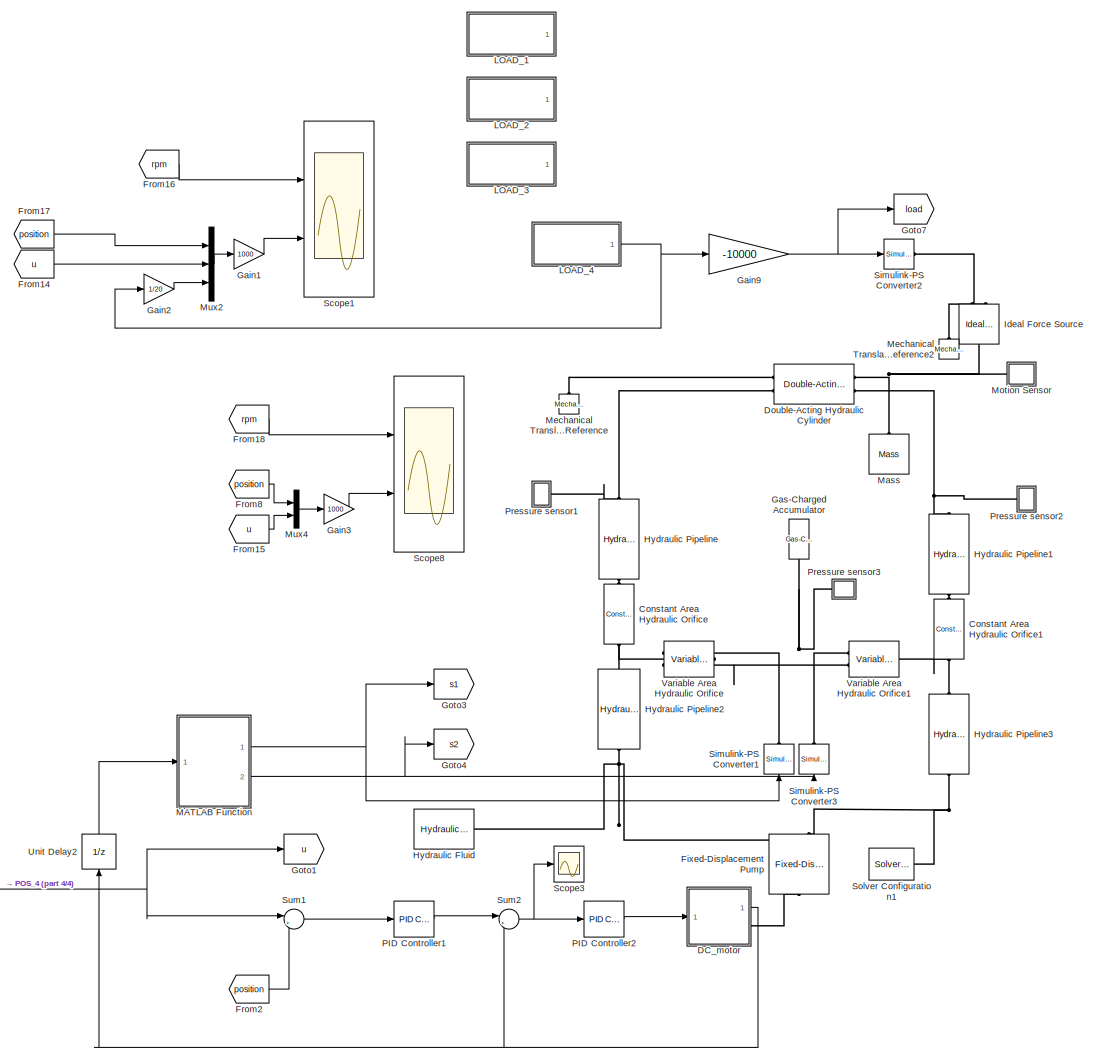
[diagram: root canvas - part 1/4, center side, full height]
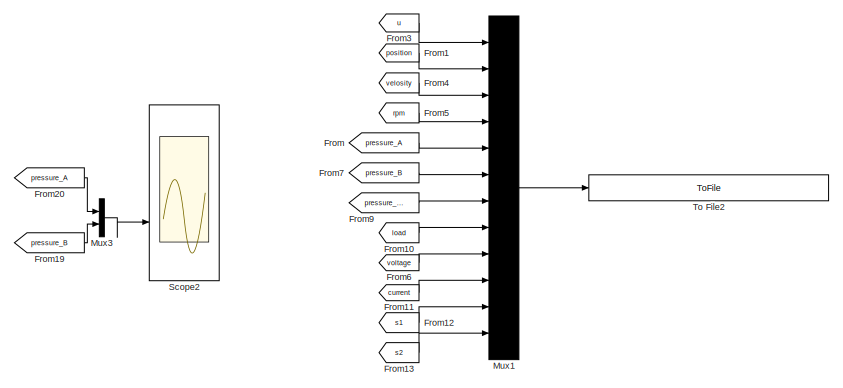
[diagram: root canvas - part 2/4, middle right region]
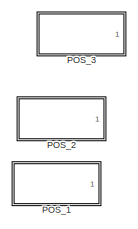
[diagram: root canvas - part 3/4, bottom left region]
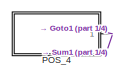
[diagram: root canvas - part 4/4, bottom left region]
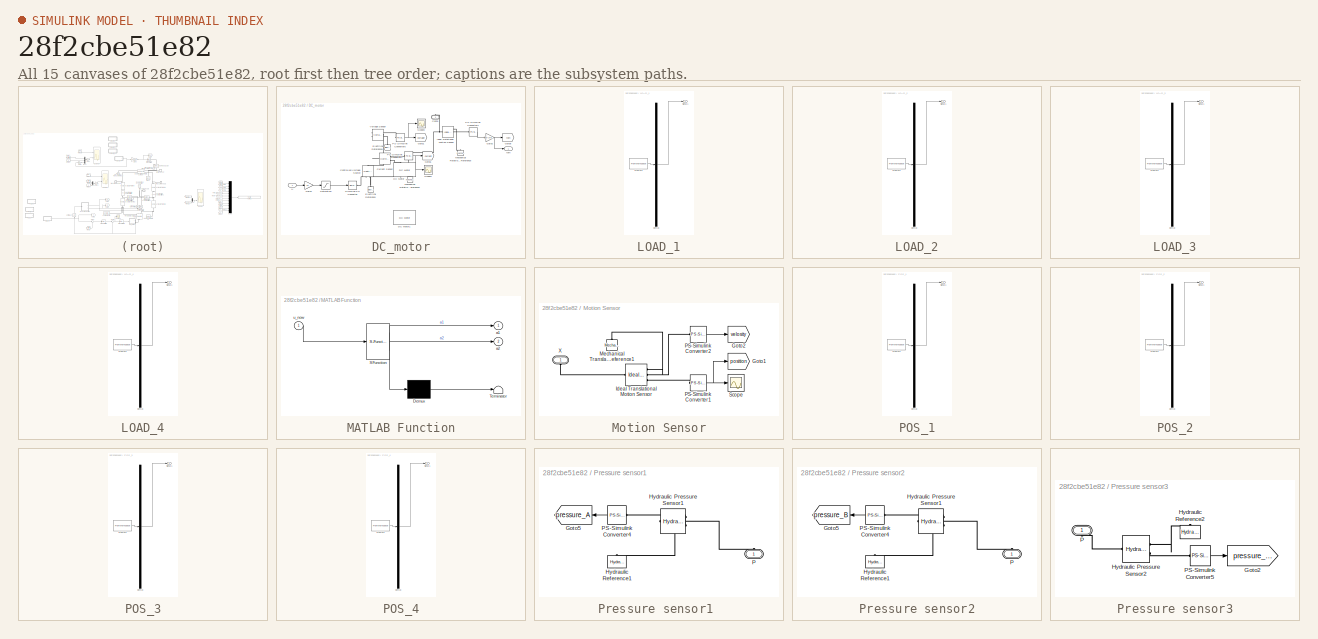
[diagram: thumbnail index - all 15 canvases of the model, root first then tree order]
MODEL slx_28f2cbe51e82
KIND model
CONFIG AbsTol = auto
CONFIG EnableMultiTasking = off
CONFIG FixedStep = auto
CONFIG MaxStep = 1e-4
CONFIG MinStep = auto
CONFIG RelTol = 1e-5
CONFIG SampleTimeConstraint = Unconstrained
CONFIG SolverName = VariableStepAuto
CONFIG StartTime = 0.0
CONFIG StopTime = 30
BLOCK [Reference] Constant Area Hydraulic Orifice  REF=fl_lib/Hydraulic/Hydraulic Elements/Constant Area
Hydraulic Orifice
  NameLocation = left
  Ports = [0, 0, 0, 0, 0, 1, 1]
  SourceBlock = fl_lib/Hydraulic/Hydraulic Elements/Constant Area\nHydraulic Orifice
  SourceProductBaseCode = SS
  SourceType = Constant Area\nHydraulic Orifice
BLOCK [Reference] Constant Area Hydraulic Orifice1  REF=fl_lib/Hydraulic/Hydraulic Elements/Constant Area
Hydraulic Orifice
  NameLocation = right
  Ports = [0, 0, 0, 0, 0, 1, 1]
  SourceBlock = fl_lib/Hydraulic/Hydraulic Elements/Constant Area\nHydraulic Orifice
  SourceProductBaseCode = SS
  SourceType = Constant Area\nHydraulic Orifice
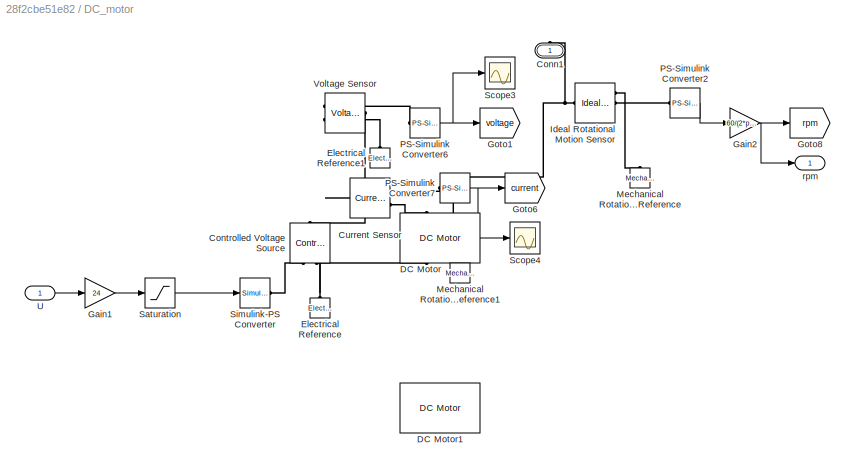
BLOCK [SubSystem] DC_motor
  Ports = [1, 1, 0, 0, 0, 0, 1]
  RequestExecContextInheritance = off
BLOCK [PMIOPort] DC_motor/Conn1
  NameLocation = right
  Side = Right
BLOCK [Reference] DC_motor/Controlled Voltage Source  REF=fl_lib/Electrical/Electrical Sources/Controlled Voltage
Source
  NameLocation = right
  Ports = [0, 0, 0, 0, 0, 1, 2]
  SourceBlock = fl_lib/Electrical/Electrical Sources/Controlled Voltage\nSource
  SourceProductBaseCode = SS
  SourceType = Controlled Voltage\nSource
BLOCK [Reference] DC_motor/Current Sensor  REF=fl_lib/Electrical/Electrical Sensors/Current Sensor
  Ports = [0, 0, 0, 0, 0, 1, 2]
  SourceBlock = fl_lib/Electrical/Electrical Sensors/Current Sensor
  SourceProductBaseCode = SS
  SourceType = Current Sensor
BLOCK [Reference] DC_motor/DC Motor  REF=ee_lib/Electromechanical/Brushed Motors/DC Motor
  NameLocation = right
  Ports = [0, 0, 0, 0, 0, 2, 2]
  SourceBlock = ee_lib/Electromechanical/Brushed Motors/DC Motor
  SourceProductBaseCode = PS
  SourceType = DC Motor
BLOCK [Reference] DC_motor/DC Motor1  REF=ee_lib/Electromechanical/Brushed Motors/DC Motor
  NameLocation = right
  Ports = [0, 0, 0, 0, 0, 2, 2]
  SourceBlock = ee_lib/Electromechanical/Brushed Motors/DC Motor
  SourceProductBaseCode = PS
  SourceType = DC Motor
BLOCK [Reference] DC_motor/Electrical Reference  REF=fl_lib/Electrical/Electrical Elements/Electrical Reference
  NameLocation = right
  Ports = [0, 0, 0, 0, 0, 1]
  SourceBlock = fl_lib/Electrical/Electrical Elements/Electrical Reference
  SourceProductBaseCode = SS
  SourceType = Electrical Reference
BLOCK [Reference] DC_motor/Electrical Reference1  REF=fl_lib/Electrical/Electrical Elements/Electrical Reference
  NameLocation = right
  Ports = [0, 0, 0, 0, 0, 1]
  SourceBlock = fl_lib/Electrical/Electrical Elements/Electrical Reference
  SourceProductBaseCode = SS
  SourceType = Electrical Reference
BLOCK [Gain] DC_motor/Gain1
  Gain = 24
BLOCK [Gain] DC_motor/Gain2
  Gain = 60/(2*pi)
BLOCK [Goto] DC_motor/Goto1
  GotoTag = voltage
  TagVisibility = global
BLOCK [Goto] DC_motor/Goto6
  GotoTag = current
  TagVisibility = global
BLOCK [Goto] DC_motor/Goto8
  GotoTag = rpm
  TagVisibility = global
BLOCK [Reference] DC_motor/Ideal Rotational Motion Sensor  REF=fl_lib/Mechanical/Mechanical Sensors/Ideal Rotational
Motion Sensor
  Ports = [0, 0, 0, 0, 0, 1, 3]
  SourceBlock = fl_lib/Mechanical/Mechanical Sensors/Ideal Rotational\nMotion Sensor
  SourceProductBaseCode = SS
  SourceType = Ideal Rotational\nMotion Sensor
BLOCK [Reference] DC_motor/Mechanical Rotational Reference  REF=fl_lib/Mechanical/Rotational Elements/Mechanical
Rotational Reference
  NameLocation = left
  Ports = [0, 0, 0, 0, 0, 1]
  SourceBlock = fl_lib/Mechanical/Rotational Elements/Mechanical\nRotational Reference
  SourceProductBaseCode = SS
  SourceType = Mechanical\nRotational Reference
BLOCK [Reference] DC_motor/Mechanical Rotational Reference1  REF=fl_lib/Mechanical/Rotational Elements/Mechanical
Rotational Reference
  NameLocation = right
  Ports = [0, 0, 0, 0, 0, 1]
  SourceBlock = fl_lib/Mechanical/Rotational Elements/Mechanical\nRotational Reference
  SourceProductBaseCode = SS
  SourceType = Mechanical\nRotational Reference
BLOCK [Reference] DC_motor/PS-Simulink Converter2  REF=nesl_utility/PS-Simulink
Converter
  Ports = [0, 1, 0, 0, 0, 1]
  SourceBlock = nesl_utility/PS-Simulink\nConverter
  SourceProductBaseCode = PW,SS
  SourceType = PS-Simulink\nConverter
BLOCK [Reference] DC_motor/PS-Simulink Converter6  REF=nesl_utility/PS-Simulink
Converter
  Ports = [0, 1, 0, 0, 0, 1]
  SourceBlock = nesl_utility/PS-Simulink\nConverter
  SourceProductBaseCode = PW,SS
  SourceType = PS-Simulink\nConverter
BLOCK [Reference] DC_motor/PS-Simulink Converter7  REF=nesl_utility/PS-Simulink
Converter
  Ports = [0, 1, 0, 0, 0, 1]
  SourceBlock = nesl_utility/PS-Simulink\nConverter
  SourceProductBaseCode = PW,SS
  SourceType = PS-Simulink\nConverter
BLOCK [Saturate] DC_motor/Saturation
  LowerLimit = -24
  UpperLimit = 24
BLOCK [Scope] DC_motor/Scope3
  Floating = off
  NumInputPorts = 1
  Ports = [1]
  ScopeSpecificationString = Simulink.scopes.TimeScopeBlockCfg('CurrentConfiguration', extmgr.ConfigurationSet(extmgr.Configuration('Core','General UI',true),extmgr.Configuration('Core','Source UI',true),extmgr.Configuration('Sources','WiredSimulink',true,'DataLoggingVariableName','ScopeData2'),extmgr.Configuration('Visuals','Time Domain',true,'SerializedDisplays',{struct('MinYLimReal','-30.00000','MaxYLimReal','30.00000','YL...<+1439ch>
BLOCK [Scope] DC_motor/Scope4
  Floating = off
  NumInputPorts = 1
  Ports = [1]
  ScopeSpecificationString = Simulink.scopes.TimeScopeBlockCfg('CurrentConfiguration', extmgr.ConfigurationSet(extmgr.Configuration('Core','General UI',true),extmgr.Configuration('Core','Source UI',true),extmgr.Configuration('Sources','WiredSimulink',true,'DataLoggingVariableName','ScopeData1'),extmgr.Configuration('Visuals','Time Domain',true,'SerializedDisplays',{struct('MinYLimReal','-10.31124','MaxYLimReal','27.49372','YL...<+1441ch>
BLOCK [Reference] DC_motor/Simulink-PS Converter  REF=nesl_utility/Simulink-PS
Converter
  Ports = [1, 0, 0, 0, 0, 0, 1]
  SourceBlock = nesl_utility/Simulink-PS\nConverter
  SourceProductBaseCode = PW,SS
  SourceType = Simulink-PS\nConverter
BLOCK [Inport] DC_motor/U 
BLOCK [Reference] DC_motor/Voltage Sensor  REF=fl_lib/Electrical/Electrical Sensors/Voltage Sensor
  NameLocation = top
  Ports = [0, 0, 0, 0, 0, 1, 2]
  SourceBlock = fl_lib/Electrical/Electrical Sensors/Voltage Sensor
  SourceProductBaseCode = SS
  SourceType = Voltage Sensor
BLOCK [Outport] DC_motor/rpm
BLOCK [Reference] Double-Acting Hydraulic Cylinder  REF=sh_lib/Hydraulic Cylinders/Double-Acting
Hydraulic Cylinder
  Ports = [0, 0, 0, 0, 0, 2, 2]
  SourceBlock = sh_lib/Hydraulic Cylinders/Double-Acting\nHydraulic Cylinder
  SourceProductBaseCode = SH
  SourceType = Double-Acting\nHydraulic Cylinder
BLOCK [Reference] Fixed-Displacement Pump  REF=sh_lib/Pumps and Motors/Fixed-Displacement
Pump
  NameLocation = left
  Ports = [0, 0, 0, 0, 0, 1, 2]
  SourceBlock = sh_lib/Pumps and Motors/Fixed-Displacement\nPump
  SourceProductBaseCode = SH
  SourceType = Fixed-Displacement\nPump
BLOCK [From] From
  GotoTag = pressure_A
  TagVisibility = global
BLOCK [From] From1
  GotoTag = position
  TagVisibility = global
BLOCK [From] From10
  GotoTag = load
BLOCK [From] From11
  GotoTag = current
  TagVisibility = global
BLOCK [From] From12
  GotoTag = s1
BLOCK [From] From13
  GotoTag = s2
BLOCK [From] From14
  GotoTag = u
BLOCK [From] From15
  GotoTag = u
BLOCK [From] From16
  GotoTag = rpm
  TagVisibility = global
BLOCK [From] From17
  GotoTag = position
  TagVisibility = global
BLOCK [From] From18
  GotoTag = rpm
  TagVisibility = global
BLOCK [From] From19
  GotoTag = pressure_B
  TagVisibility = global
BLOCK [From] From2
  GotoTag = position
  TagVisibility = global
BLOCK [From] From20
  GotoTag = pressure_A
  TagVisibility = global
BLOCK [From] From3
  GotoTag = u
BLOCK [From] From4
  GotoTag = velosity
  TagVisibility = global
BLOCK [From] From5
  GotoTag = rpm
  TagVisibility = global
BLOCK [From] From6
  GotoTag = voltage
  TagVisibility = global
BLOCK [From] From7
  GotoTag = pressure_B
  TagVisibility = global
BLOCK [From] From8
  GotoTag = position
  TagVisibility = global
BLOCK [From] From9
  GotoTag = pressure_ACC
  TagVisibility = global
BLOCK [Gain] Gain1
  Gain = 1000
BLOCK [Gain] Gain2
  Gain = 1/20
BLOCK [Gain] Gain3
  Gain = 1000
BLOCK [Gain] Gain9
  Gain = -10000
BLOCK [Reference] Gas-Charged Accumulator  REF=sh_lib/Accumulators/Gas-Charged
Accumulator
  NameLocation = right
  Ports = [0, 0, 0, 0, 0, 0, 1]
  SourceBlock = sh_lib/Accumulators/Gas-Charged\nAccumulator
  SourceProductBaseCode = SH
  SourceType = Gas-Charged\nAccumulator
BLOCK [Goto] Goto1
  GotoTag = u
BLOCK [Goto] Goto3
  GotoTag = s1
BLOCK [Goto] Goto4
  GotoTag = s2
BLOCK [Goto] Goto7
  GotoTag = load
BLOCK [Reference] Hydraulic Fluid  REF=sh_lib/Hydraulic Utilities/Hydraulic Fluid
  Ports = [0, 0, 0, 0, 0, 0, 1]
  SourceBlock = sh_lib/Hydraulic Utilities/Hydraulic Fluid
  SourceProductBaseCode = SH
  SourceType = Hydraulic Fluid
BLOCK [Reference] Hydraulic Pipeline  REF=sh_lib/Pipelines/Hydraulic Pipeline
  NameLocation = right
  Ports = [0, 0, 0, 0, 0, 1, 1]
  SourceBlock = sh_lib/Pipelines/Hydraulic Pipeline
  SourceProductBaseCode = SH
  SourceType = Hydraulic Pipeline
BLOCK [Reference] Hydraulic Pipeline1  REF=sh_lib/Pipelines/Hydraulic Pipeline
  NameLocation = right
  Ports = [0, 0, 0, 0, 0, 1, 1]
  SourceBlock = sh_lib/Pipelines/Hydraulic Pipeline
  SourceProductBaseCode = SH
  SourceType = Hydraulic Pipeline
BLOCK [Reference] Hydraulic Pipeline2  REF=sh_lib/Pipelines/Hydraulic Pipeline
  NameLocation = right
  Ports = [0, 0, 0, 0, 0, 1, 1]
  SourceBlock = sh_lib/Pipelines/Hydraulic Pipeline
  SourceProductBaseCode = SH
  SourceType = Hydraulic Pipeline
BLOCK [Reference] Hydraulic Pipeline3  REF=sh_lib/Pipelines/Hydraulic Pipeline
  NameLocation = right
  Ports = [0, 0, 0, 0, 0, 1, 1]
  SourceBlock = sh_lib/Pipelines/Hydraulic Pipeline
  SourceProductBaseCode = SH
  SourceType = Hydraulic Pipeline
BLOCK [Reference] Ideal Force Source  REF=fl_lib/Mechanical/Mechanical Sources/Ideal Force Source
  NameLocation = right
  Ports = [0, 0, 0, 0, 0, 1, 2]
  SourceBlock = fl_lib/Mechanical/Mechanical Sources/Ideal Force Source
  SourceProductBaseCode = SS
  SourceType = Ideal Force Source
BLOCK [SubSystem] LOAD_1
  ClipboardFcn = sigbuilder_block('clipboard');
  CloseFcn = sigbuilder_block('close');
  ContinueFcn = sigbuilder_block('continue');
  CopyFcn = sigbuilder_block('copy');
  DeleteFcn = sigbuilder_block('delete');
  LoadFcn = sigbuilder_block('load');
  MaskHideContents = on
  ModelCloseFcn = sigbuilder_block('modelClose');
  NameChangeFcn = sigbuilder_block('namechange');
  OpenFcn = sigbuilder_block('open',[6 33.75 1428 641.25 ]);
  PauseFcn = sigbuilder_block('pause');
  Ports = [0, 1]
  PreSaveFcn = sigbuilder_block('preSave');
  RequestExecContextInheritance = off
  StartFcn = sigbuilder_block('start');
  StopFcn = sigbuilder_block('stop');
  Tag = STV Subsys
BLOCK [Demux] LOAD_1/Demux
  DisplayOption = none
  Outputs = 1
  Ports = [1, 1]
  Tag = STV Demux
BLOCK [FromWorkspace] LOAD_1/FromWs
  Tag = STV FromWs
  VariableName = tuvar
BLOCK [Outport] LOAD_1/Signal 1
  Tag = STV Outport
BLOCK [SubSystem] LOAD_2
  ClipboardFcn = sigbuilder_block('clipboard');
  CloseFcn = sigbuilder_block('close');
  ContinueFcn = sigbuilder_block('continue');
  CopyFcn = sigbuilder_block('copy');
  DeleteFcn = sigbuilder_block('delete');
  LoadFcn = sigbuilder_block('load');
  MaskHideContents = on
  ModelCloseFcn = sigbuilder_block('modelClose');
  NameChangeFcn = sigbuilder_block('namechange');
  OpenFcn = sigbuilder_block('open',[6 33.75 1428 641.25 ]);
  PauseFcn = sigbuilder_block('pause');
  Ports = [0, 1]
  PreSaveFcn = sigbuilder_block('preSave');
  RequestExecContextInheritance = off
  StartFcn = sigbuilder_block('start');
  StopFcn = sigbuilder_block('stop');
  Tag = STV Subsys
BLOCK [Demux] LOAD_2/Demux
  DisplayOption = none
  Outputs = 1
  Ports = [1, 1]
  Tag = STV Demux
BLOCK [FromWorkspace] LOAD_2/FromWs
  Tag = STV FromWs
  VariableName = tuvar
BLOCK [Outport] LOAD_2/Signal 1
  Tag = STV Outport
BLOCK [SubSystem] LOAD_3
  ClipboardFcn = sigbuilder_block('clipboard');
  CloseFcn = sigbuilder_block('close');
  ContinueFcn = sigbuilder_block('continue');
  CopyFcn = sigbuilder_block('copy');
  DeleteFcn = sigbuilder_block('delete');
  LoadFcn = sigbuilder_block('load');
  MaskHideContents = on
  ModelCloseFcn = sigbuilder_block('modelClose');
  NameChangeFcn = sigbuilder_block('namechange');
  OpenFcn = sigbuilder_block('open',[6 33.75 1428 641.25 ]);
  PauseFcn = sigbuilder_block('pause');
  Ports = [0, 1]
  PreSaveFcn = sigbuilder_block('preSave');
  RequestExecContextInheritance = off
  StartFcn = sigbuilder_block('start');
  StopFcn = sigbuilder_block('stop');
  Tag = STV Subsys
BLOCK [Demux] LOAD_3/Demux
  DisplayOption = none
  Outputs = 1
  Ports = [1, 1]
  Tag = STV Demux
BLOCK [FromWorkspace] LOAD_3/FromWs
  Tag = STV FromWs
  VariableName = tuvar
BLOCK [Outport] LOAD_3/Signal 1
  Tag = STV Outport
BLOCK [SubSystem] LOAD_4
  ClipboardFcn = sigbuilder_block('clipboard');
  CloseFcn = sigbuilder_block('close');
  ContinueFcn = sigbuilder_block('continue');
  CopyFcn = sigbuilder_block('copy');
  DeleteFcn = sigbuilder_block('delete');
  LoadFcn = sigbuilder_block('load',[6 30 1428 681.75 ]);
  MaskHideContents = on
  ModelCloseFcn = sigbuilder_block('modelClose');
  NameChangeFcn = sigbuilder_block('namechange');
  OpenFcn = sigbuilder_block('open',[6 33.75 1428 641.25 ]);
  PauseFcn = sigbuilder_block('pause');
  Ports = [0, 1]
  PreSaveFcn = sigbuilder_block('preSave');
  RequestExecContextInheritance = off
  StartFcn = sigbuilder_block('start');
  StopFcn = sigbuilder_block('stop');
  Tag = STV Subsys
BLOCK [Demux] LOAD_4/Demux
  DisplayOption = none
  Outputs = 1
  Ports = [1, 1]
  Tag = STV Demux
BLOCK [FromWorkspace] LOAD_4/FromWs
  Tag = STV FromWs
  VariableName = tuvar
BLOCK [Outport] LOAD_4/Signal 1
  Tag = STV Outport
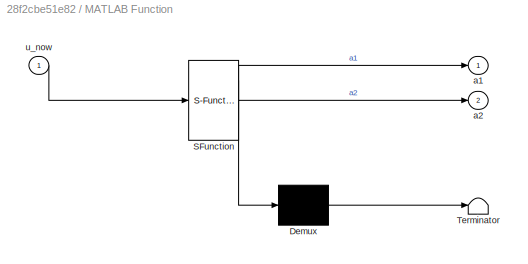
BLOCK [SubSystem] MATLAB Function
  ErrorFcn = Stateflow.Translate.translate
  PermitHierarchicalResolution = ExplicitOnly
  Ports = [1, 2]
  RequestExecContextInheritance = off
  SFBlockType = MATLAB Function
  TreatAsAtomicUnit = on
BLOCK [Demux] MATLAB Function/ Demux 
  Outputs = 1
  Ports = [1, 1]
BLOCK [S-Function] MATLAB Function/ SFunction 
  EnableBusSupport = on
  FunctionName = sf_sfun
  PortCounts = [1 3]
  Ports = [1, 3]
  SFcnIsStateOwnerBlock = off
  SFunctionDeploymentMode = off
  Tag = Stateflow S-Function 2
BLOCK [Terminator] MATLAB Function/ Terminator 
BLOCK [Outport] MATLAB Function/a1
BLOCK [Outport] MATLAB Function/a2
  Port = 2
BLOCK [Inport] MATLAB Function/u_now
BLOCK [Reference] Mass  REF=fl_lib/Mechanical/Translational
Elements/Mass
  NameLocation = right
  Ports = [0, 0, 0, 0, 0, 1]
  SourceBlock = fl_lib/Mechanical/Translational\nElements/Mass
  SourceProductBaseCode = SS
  SourceType = Mass
BLOCK [Reference] Mechanical Translational Reference  REF=fl_lib/Mechanical/Translational
Elements/Mechanical
Translational
Reference
  NameLocation = left
  Ports = [0, 0, 0, 0, 0, 1]
  SourceBlock = fl_lib/Mechanical/Translational\nElements/Mechanical\nTranslational\nReference
  SourceProductBaseCode = SS
  SourceType = Mechanical\nTranslational\nReference
BLOCK [Reference] Mechanical Translational Reference2  REF=fl_lib/Mechanical/Translational
Elements/Mechanical
Translational
Reference
  NameLocation = left
  Ports = [0, 0, 0, 0, 0, 1]
  SourceBlock = fl_lib/Mechanical/Translational\nElements/Mechanical\nTranslational\nReference
  SourceProductBaseCode = SS
  SourceType = Mechanical\nTranslational\nReference
BLOCK [SubSystem] Motion Sensor
  Ports = [0, 0, 0, 0, 0, 1]
  RequestExecContextInheritance = off
BLOCK [Goto] Motion Sensor/Goto1
  GotoTag = position
  NameLocation = top
  TagVisibility = global
BLOCK [Goto] Motion Sensor/Goto2
  GotoTag = velosity
  NameLocation = top
  TagVisibility = global
BLOCK [Reference] Motion Sensor/Ideal Translational Motion Sensor  REF=fl_lib/Mechanical/Mechanical Sensors/Ideal Translational
Motion Sensor
  Ports = [0, 0, 0, 0, 0, 1, 3]
  SourceBlock = fl_lib/Mechanical/Mechanical Sensors/Ideal Translational\nMotion Sensor
  SourceProductBaseCode = SS
  SourceType = Ideal Translational\nMotion Sensor
BLOCK [Reference] Motion Sensor/Mechanical Translational Reference1  REF=fl_lib/Mechanical/Translational
Elements/Mechanical
Translational
Reference
  NameLocation = right
  Ports = [0, 0, 0, 0, 0, 1]
  SourceBlock = fl_lib/Mechanical/Translational\nElements/Mechanical\nTranslational\nReference
  SourceProductBaseCode = SS
  SourceType = Mechanical\nTranslational\nReference
BLOCK [Reference] Motion Sensor/PS-Simulink Converter1  REF=nesl_utility/PS-Simulink
Converter
  Ports = [0, 1, 0, 0, 0, 1]
  SourceBlock = nesl_utility/PS-Simulink\nConverter
  SourceProductBaseCode = PW,SS
  SourceType = PS-Simulink\nConverter
BLOCK [Reference] Motion Sensor/PS-Simulink Converter2  REF=nesl_utility/PS-Simulink
Converter
  Ports = [0, 1, 0, 0, 0, 1]
  SourceBlock = nesl_utility/PS-Simulink\nConverter
  SourceProductBaseCode = PW,SS
  SourceType = PS-Simulink\nConverter
BLOCK [Scope] Motion Sensor/Scope
  Floating = off
  NumInputPorts = 1
  Ports = [1]
  ScopeSpecificationString = Simulink.scopes.TimeScopeBlockCfg('CurrentConfiguration', extmgr.ConfigurationSet(extmgr.Configuration('Core','General UI',true),extmgr.Configuration('Core','Source UI',true),extmgr.Configuration('Sources','WiredSimulink',true),extmgr.Configuration('Visuals','Time Domain',true,'SerializedDisplays',{struct('MinYLimReal','-0.01878','MaxYLimReal','0.16876','YLabelReal','','MinYLimMag','0.00000','MaxY...<+1412ch>
BLOCK [PMIOPort] Motion Sensor/X
  NameLocation = right
  Side = Left
BLOCK [Mux] Mux1
  DisplayOption = bar
  Inputs = 12
  Ports = [12, 1]
BLOCK [Mux] Mux2
  DisplayOption = bar
  Inputs = 3
  Ports = [3, 1]
BLOCK [Mux] Mux3
  DisplayOption = bar
  Inputs = 2
  Ports = [2, 1]
BLOCK [Mux] Mux4
  DisplayOption = bar
  Inputs = 2
  Ports = [2, 1]
BLOCK [Reference] PID Controller1  REF=pid_lib/PID Controller
  Ports = [1, 1]
  SourceBlock = pid_lib/PID Controller
  SourceProductBaseCode = SL
  SourceType = PID 1dof
BLOCK [Reference] PID Controller2  REF=pid_lib/PID Controller
  Ports = [1, 1]
  SourceBlock = pid_lib/PID Controller
  SourceProductBaseCode = SL
  SourceType = PID 1dof
BLOCK [SubSystem] POS_1
  ClipboardFcn = sigbuilder_block('clipboard');
  CloseFcn = sigbuilder_block('close');
  ContinueFcn = sigbuilder_block('continue');
  CopyFcn = sigbuilder_block('copy');
  DeleteFcn = sigbuilder_block('delete');
  LoadFcn = sigbuilder_block('load');
  MaskHideContents = on
  ModelCloseFcn = sigbuilder_block('modelClose');
  NameChangeFcn = sigbuilder_block('namechange');
  OpenFcn = sigbuilder_block('open',[0 30 1440 722.25 ]);
  PauseFcn = sigbuilder_block('pause');
  Ports = [0, 1]
  PreSaveFcn = sigbuilder_block('preSave');
  RequestExecContextInheritance = off
  StartFcn = sigbuilder_block('start');
  StopFcn = sigbuilder_block('stop');
  Tag = STV Subsys
BLOCK [Demux] POS_1/Demux
  DisplayOption = none
  Outputs = 1
  Ports = [1, 1]
  Tag = STV Demux
BLOCK [FromWorkspace] POS_1/FromWs
  Tag = STV FromWs
  VariableName = tuvar
BLOCK [Outport] POS_1/Signal 1
  Tag = STV Outport
BLOCK [SubSystem] POS_2
  ClipboardFcn = sigbuilder_block('clipboard');
  CloseFcn = sigbuilder_block('close');
  ContinueFcn = sigbuilder_block('continue');
  CopyFcn = sigbuilder_block('copy');
  DeleteFcn = sigbuilder_block('delete');
  LoadFcn = sigbuilder_block('load');
  MaskHideContents = on
  ModelCloseFcn = sigbuilder_block('modelClose');
  NameChangeFcn = sigbuilder_block('namechange');
  OpenFcn = sigbuilder_block('open',[6 30 1428 681.75 ]);
  PauseFcn = sigbuilder_block('pause');
  Ports = [0, 1]
  PreSaveFcn = sigbuilder_block('preSave');
  RequestExecContextInheritance = off
  StartFcn = sigbuilder_block('start');
  StopFcn = sigbuilder_block('stop');
  Tag = STV Subsys
BLOCK [Demux] POS_2/Demux
  DisplayOption = none
  Outputs = 1
  Ports = [1, 1]
  Tag = STV Demux
BLOCK [FromWorkspace] POS_2/FromWs
  Tag = STV FromWs
  VariableName = tuvar
BLOCK [Outport] POS_2/Signal 1
  Tag = STV Outport
BLOCK [SubSystem] POS_3
  ClipboardFcn = sigbuilder_block('clipboard');
  CloseFcn = sigbuilder_block('close');
  ContinueFcn = sigbuilder_block('continue');
  CopyFcn = sigbuilder_block('copy');
  DeleteFcn = sigbuilder_block('delete');
  LoadFcn = sigbuilder_block('load');
  MaskHideContents = on
  ModelCloseFcn = sigbuilder_block('modelClose');
  NameChangeFcn = sigbuilder_block('namechange');
  OpenFcn = sigbuilder_block('open',[6 30 1428 681.75 ]);
  PauseFcn = sigbuilder_block('pause');
  Ports = [0, 1]
  PreSaveFcn = sigbuilder_block('preSave');
  RequestExecContextInheritance = off
  StartFcn = sigbuilder_block('start');
  StopFcn = sigbuilder_block('stop');
  Tag = STV Subsys
BLOCK [Demux] POS_3/Demux
  DisplayOption = none
  Outputs = 1
  Ports = [1, 1]
  Tag = STV Demux
BLOCK [FromWorkspace] POS_3/FromWs
  Tag = STV FromWs
  VariableName = tuvar
BLOCK [Outport] POS_3/Signal 1
  Tag = STV Outport
BLOCK [SubSystem] POS_4
  ClipboardFcn = sigbuilder_block('clipboard');
  CloseFcn = sigbuilder_block('close');
  ContinueFcn = sigbuilder_block('continue');
  CopyFcn = sigbuilder_block('copy');
  DeleteFcn = sigbuilder_block('delete');
  LoadFcn = sigbuilder_block('load');
  MaskHideContents = on
  ModelCloseFcn = sigbuilder_block('modelClose');
  NameChangeFcn = sigbuilder_block('namechange');
  OpenFcn = sigbuilder_block('open',[6 30 1428 681.75 ]);
  PauseFcn = sigbuilder_block('pause');
  Ports = [0, 1]
  PreSaveFcn = sigbuilder_block('preSave');
  RequestExecContextInheritance = off
  StartFcn = sigbuilder_block('start');
  StopFcn = sigbuilder_block('stop');
  Tag = STV Subsys
BLOCK [Demux] POS_4/Demux
  DisplayOption = none
  Outputs = 1
  Ports = [1, 1]
  Tag = STV Demux
BLOCK [FromWorkspace] POS_4/FromWs
  Tag = STV FromWs
  VariableName = tuvar
BLOCK [Outport] POS_4/Signal 1
  Tag = STV Outport
BLOCK [SubSystem] Pressure sensor1 
  Ports = [0, 0, 0, 0, 0, 1]
  RequestExecContextInheritance = off
BLOCK [Goto] Pressure sensor1 /Goto5
  GotoTag = pressure_A
  NameLocation = top
  TagVisibility = global
BLOCK [Reference] Pressure sensor1 /Hydraulic Pressure Sensor1  REF=fl_lib/Hydraulic/Hydraulic Sensors/Hydraulic Pressure
Sensor
  Ports = [0, 0, 0, 0, 0, 1, 2]
  SourceBlock = fl_lib/Hydraulic/Hydraulic Sensors/Hydraulic Pressure\nSensor
  SourceProductBaseCode = SS
  SourceType = Hydraulic Pressure\nSensor
BLOCK [Reference] Pressure sensor1 /Hydraulic Reference1  REF=fl_lib/Hydraulic/Hydraulic Elements/Hydraulic Reference
  NameLocation = right
  Ports = [0, 0, 0, 0, 0, 1]
  SourceBlock = fl_lib/Hydraulic/Hydraulic Elements/Hydraulic Reference
  SourceProductBaseCode = SS
  SourceType = Hydraulic Reference
BLOCK [PMIOPort] Pressure sensor1 /P 
  NameLocation = right
  Side = Left
BLOCK [Reference] Pressure sensor1 /PS-Simulink Converter4  REF=nesl_utility/PS-Simulink
Converter
  Ports = [0, 1, 0, 0, 0, 1]
  SourceBlock = nesl_utility/PS-Simulink\nConverter
  SourceProductBaseCode = PW,SS
  SourceType = PS-Simulink\nConverter
BLOCK [SubSystem] Pressure sensor2
  Ports = [0, 0, 0, 0, 0, 1]
  RequestExecContextInheritance = off
BLOCK [Goto] Pressure sensor2/Goto5
  GotoTag = pressure_B
  NameLocation = top
  TagVisibility = global
BLOCK [Reference] Pressure sensor2/Hydraulic Pressure Sensor1  REF=fl_lib/Hydraulic/Hydraulic Sensors/Hydraulic Pressure
Sensor
  Ports = [0, 0, 0, 0, 0, 1, 2]
  SourceBlock = fl_lib/Hydraulic/Hydraulic Sensors/Hydraulic Pressure\nSensor
  SourceProductBaseCode = SS
  SourceType = Hydraulic Pressure\nSensor
BLOCK [Reference] Pressure sensor2/Hydraulic Reference1  REF=fl_lib/Hydraulic/Hydraulic Elements/Hydraulic Reference
  NameLocation = right
  Ports = [0, 0, 0, 0, 0, 1]
  SourceBlock = fl_lib/Hydraulic/Hydraulic Elements/Hydraulic Reference
  SourceProductBaseCode = SS
  SourceType = Hydraulic Reference
BLOCK [PMIOPort] Pressure sensor2/P 
  NameLocation = right
  Side = Left
BLOCK [Reference] Pressure sensor2/PS-Simulink Converter4  REF=nesl_utility/PS-Simulink
Converter
  Ports = [0, 1, 0, 0, 0, 1]
  SourceBlock = nesl_utility/PS-Simulink\nConverter
  SourceProductBaseCode = PW,SS
  SourceType = PS-Simulink\nConverter
BLOCK [SubSystem] Pressure sensor3
  Ports = [0, 0, 0, 0, 0, 1]
  RequestExecContextInheritance = off
BLOCK [Goto] Pressure sensor3/Goto2
  GotoTag = pressure_ACC
  TagVisibility = global
BLOCK [Reference] Pressure sensor3/Hydraulic Pressure Sensor2  REF=fl_lib/Hydraulic/Hydraulic Sensors/Hydraulic Pressure
Sensor
  Ports = [0, 0, 0, 0, 0, 1, 2]
  SourceBlock = fl_lib/Hydraulic/Hydraulic Sensors/Hydraulic Pressure\nSensor
  SourceProductBaseCode = SS
  SourceType = Hydraulic Pressure\nSensor
BLOCK [Reference] Pressure sensor3/Hydraulic Reference2  REF=fl_lib/Hydraulic/Hydraulic Elements/Hydraulic Reference
  NameLocation = right
  Ports = [0, 0, 0, 0, 0, 1]
  SourceBlock = fl_lib/Hydraulic/Hydraulic Elements/Hydraulic Reference
  SourceProductBaseCode = SS
  SourceType = Hydraulic Reference
BLOCK [PMIOPort] Pressure sensor3/P
  NameLocation = right
  Side = Left
BLOCK [Reference] Pressure sensor3/PS-Simulink Converter5  REF=nesl_utility/PS-Simulink
Converter
  Ports = [0, 1, 0, 0, 0, 1]
  SourceBlock = nesl_utility/PS-Simulink\nConverter
  SourceProductBaseCode = PW,SS
  SourceType = PS-Simulink\nConverter
BLOCK [Scope] Scope1
  Floating = off
  NumInputPorts = 2
  Ports = [2]
  ScopeSpecificationString = Simulink.scopes.TimeScopeBlockCfg('CurrentConfiguration', extmgr.ConfigurationSet(extmgr.Configuration('Core','General UI',true,'FigureColor',[1 1 1]),extmgr.Configuration('Core','Source UI',true),extmgr.Configuration('Sources','WiredSimulink',true,'DataLoggingVariableName','ScopeData1'),extmgr.Configuration('Visuals','Time Domain',true,'SerializedDisplays',{struct('MinYLimReal','-987.66183','MaxY...<+2645ch>
BLOCK [Scope] Scope2
  Floating = off
  NumInputPorts = 2
  Ports = [2]
  ScopeSpecificationString = Simulink.scopes.TimeScopeBlockCfg('CurrentConfiguration', extmgr.ConfigurationSet(extmgr.Configuration('Core','General UI',true,'FigureColor',[1 1 1]),extmgr.Configuration('Core','Source UI',true),extmgr.Configuration('Sources','WiredSimulink',true,'DataLoggingVariableName','ScopeData1'),extmgr.Configuration('Visuals','Time Domain',true,'SerializedDisplays',{struct('MinYLimReal','-1.00000','MaxYLi...<+2643ch>
BLOCK [Scope] Scope3
  Floating = off
  NumInputPorts = 1
  Ports = [1]
  ScopeSpecificationString = Simulink.scopes.TimeScopeBlockCfg('CurrentConfiguration', extmgr.ConfigurationSet(extmgr.Configuration('Core','General UI',true),extmgr.Configuration('Core','Source UI',true),extmgr.Configuration('Sources','WiredSimulink',true,'DataLoggingVariableName','ScopeData1'),extmgr.Configuration('Visuals','Time Domain',true,'SerializedDisplays',{struct('MinYLimReal','-248.7398','MaxYLimReal','1807.79158','...<+1799ch>
BLOCK [Scope] Scope8
  Floating = off
  NumInputPorts = 2
  Ports = [2]
  ScopeSpecificationString = Simulink.scopes.TimeScopeBlockCfg('CurrentConfiguration', extmgr.ConfigurationSet(extmgr.Configuration('Core','General UI',true,'FigureColor',[1 1 1]),extmgr.Configuration('Core','Source UI',true),extmgr.Configuration('Sources','WiredSimulink',true,'DataLoggingVariableName','ScopeData1'),extmgr.Configuration('Visuals','Time Domain',true,'SerializedDisplays',{struct('MinYLimReal','-990.06094','MaxY...<+2650ch>
BLOCK [Reference] Simulink-PS Converter1  REF=nesl_utility/Simulink-PS
Converter
  NameLocation = left
  Ports = [1, 0, 0, 0, 0, 0, 1]
  SourceBlock = nesl_utility/Simulink-PS\nConverter
  SourceProductBaseCode = PW,SS
  SourceType = Simulink-PS\nConverter
BLOCK [Reference] Simulink-PS Converter2  REF=nesl_utility/Simulink-PS
Converter
  Ports = [1, 0, 0, 0, 0, 0, 1]
  SourceBlock = nesl_utility/Simulink-PS\nConverter
  SourceProductBaseCode = PW,SS
  SourceType = Simulink-PS\nConverter
BLOCK [Reference] Simulink-PS Converter3  REF=nesl_utility/Simulink-PS
Converter
  NameLocation = right
  Ports = [1, 0, 0, 0, 0, 0, 1]
  SourceBlock = nesl_utility/Simulink-PS\nConverter
  SourceProductBaseCode = PW,SS
  SourceType = Simulink-PS\nConverter
BLOCK [Reference] Solver Configuration1  REF=nesl_utility/Solver
Configuration
  Ports = [0, 0, 0, 0, 0, 0, 1]
  SourceBlock = nesl_utility/Solver\nConfiguration
  SourceProductBaseCode = PW,SS
  SourceType = Solver\nConfiguration
BLOCK [Sum] Sum1
  Inputs = |+-
  NameLocation = top
  Ports = [2, 1]
BLOCK [Sum] Sum2
  Inputs = |+-
  NameLocation = top
  Ports = [2, 1]
BLOCK [ToFile] To File2
  Filename = ../4_ANALIZE_DATA/DATA_Simulation/sim_data_5_4.mat
  MatrixName = data
  Ports = [1]
BLOCK [UnitDelay] Unit Delay2
  HasFrameUpgradeWarning = on
  NameLocation = right
  SampleTime = 0.05
BLOCK [Reference] Variable Area Hydraulic Orifice  REF=fl_lib/Hydraulic/Hydraulic Elements/Variable Area
Hydraulic Orifice
  NameLocation = top
  Ports = [0, 0, 0, 0, 0, 2, 1]
  SourceBlock = fl_lib/Hydraulic/Hydraulic Elements/Variable Area\nHydraulic Orifice
  SourceProductBaseCode = SS
  SourceType = Variable Area\nHydraulic Orifice
BLOCK [Reference] Variable Area Hydraulic Orifice1  REF=fl_lib/Hydraulic/Hydraulic Elements/Variable Area
Hydraulic Orifice
  Ports = [0, 0, 0, 0, 0, 2, 1]
  SourceBlock = fl_lib/Hydraulic/Hydraulic Elements/Variable Area\nHydraulic Orifice
  SourceProductBaseCode = SS
  SourceType = Variable Area\nHydraulic Orifice
LINE DC_motor/Gain1:1 -> DC_motor/Saturation:1
NET DC_motor/Gain2:1 -> DC_motor/Goto8:1, DC_motor/rpm:1
LINE DC_motor/PS-Simulink Converter2:1 -> DC_motor/Gain2:1
NET DC_motor/PS-Simulink Converter6:1 -> DC_motor/Goto1:1, DC_motor/Scope3:1
NET DC_motor/PS-Simulink Converter7:1 -> DC_motor/Goto6:1, DC_motor/Scope4:1
LINE DC_motor/Saturation:1 -> DC_motor/Simulink-PS Converter:1
LINE DC_motor/U :1 -> DC_motor/Gain1:1
NET DC_motor:1 -> Sum2:2, Unit Delay2:1
LINE From10:1 -> Mux1:8
LINE From11:1 -> Mux1:10
LINE From12:1 -> Mux1:11
LINE From13:1 -> Mux1:12
LINE From14:1 -> Mux2:2
LINE From15:1 -> Mux4:2
LINE From16:1 -> Scope1:1
LINE From17:1 -> Mux2:1
LINE From18:1 -> Scope8:1
LINE From19:1 -> Mux3:2
LINE From1:1 -> Mux1:2
LINE From20:1 -> Mux3:1
LINE From2:1 -> Sum1:2
LINE From3:1 -> Mux1:1
LINE From4:1 -> Mux1:3
LINE From5:1 -> Mux1:4
LINE From6:1 -> Mux1:9
LINE From7:1 -> Mux1:6
LINE From8:1 -> Mux4:1
LINE From9:1 -> Mux1:7
LINE From:1 -> Mux1:5
LINE Gain1:1 -> Scope1:2
LINE Gain2:1 -> Mux2:3
LINE Gain3:1 -> Scope8:2
NET Gain9:1 -> Goto7:1, Simulink-PS Converter2:1
NET LOAD_4:1 -> Gain2:1, Gain9:1
NET MATLAB Function:1 -> Goto3:1, Simulink-PS Converter1:1
NET MATLAB Function:2 -> Goto4:1, Simulink-PS Converter3:1
NET Motion Sensor/PS-Simulink Converter1:1 -> Motion Sensor/Goto1:1, Motion Sensor/Scope:1
LINE Motion Sensor/PS-Simulink Converter2:1 -> Motion Sensor/Goto2:1
LINE Mux1:1 -> To File2:1
LINE Mux2:1 -> Gain1:1
LINE Mux3:1 -> Scope2:2
LINE Mux4:1 -> Gain3:1
LINE PID Controller1:1 -> Sum2:1
LINE PID Controller2:1 -> DC_motor:1
NET POS_4:1 -> Goto1:1, Sum1:1
LINE Pressure sensor1 /PS-Simulink Converter4:1 -> Pressure sensor1 /Goto5:1
LINE Pressure sensor2/PS-Simulink Converter4:1 -> Pressure sensor2/Goto5:1
LINE Pressure sensor3/PS-Simulink Converter5:1 -> Pressure sensor3/Goto2:1
LINE Sum1:1 -> PID Controller1:1
NET Sum2:1 -> PID Controller2:1, Scope3:1
LINE Unit Delay2:1 -> MATLAB Function:1
PNET net1: Constant Area Hydraulic Orifice1:LConn1 -- Hydraulic Pipeline3:RConn1 -- Variable Area Hydraulic Orifice1:RConn1
PLINE Constant Area Hydraulic Orifice1:RConn1 -- Hydraulic Pipeline1:LConn1
PNET net2: Constant Area Hydraulic Orifice:LConn1 -- Hydraulic Pipeline2:RConn1 -- Variable Area Hydraulic Orifice:RConn1
PLINE Constant Area Hydraulic Orifice:RConn1 -- Hydraulic Pipeline:LConn1
PNET net3: DC_motor/Conn1:RConn1 -- DC_motor/DC Motor:LConn2 -- DC_motor/Ideal Rotational Motion Sensor:LConn1
PNET net4: DC_motor/Controlled Voltage Source:LConn1 -- DC_motor/Current Sensor:LConn1 -- DC_motor/Voltage Sensor:LConn1
PLINE DC_motor/Controlled Voltage Source:RConn1 -- DC_motor/Simulink-PS Converter:RConn1
PNET net5: DC_motor/Controlled Voltage Source:RConn2 -- DC_motor/DC Motor:RConn1 -- DC_motor/Electrical Reference:LConn1
PLINE DC_motor/Current Sensor:RConn1 -- DC_motor/PS-Simulink Converter7:LConn1
PLINE DC_motor/Current Sensor:RConn2 -- DC_motor/DC Motor:LConn1
PLINE DC_motor/DC Motor:RConn2 -- DC_motor/Mechanical Rotational Reference1:LConn1
PLINE DC_motor/Electrical Reference1:LConn1 -- DC_motor/Voltage Sensor:RConn2
PLINE DC_motor/Ideal Rotational Motion Sensor:RConn1 -- DC_motor/Mechanical Rotational Reference:LConn1
PLINE DC_motor/Ideal Rotational Motion Sensor:RConn2 -- DC_motor/PS-Simulink Converter2:LConn1
PLINE DC_motor/PS-Simulink Converter6:LConn1 -- DC_motor/Voltage Sensor:RConn1
PLINE DC_motor:RConn1 -- Fixed-Displacement Pump:LConn1
PLINE Double-Acting Hydraulic Cylinder:LConn1 -- Mechanical Translational Reference:LConn1
PNET net6: Double-Acting Hydraulic Cylinder:LConn2 -- Hydraulic Pipeline:RConn1 -- Pressure sensor1 :LConn1
PNET net7: Double-Acting Hydraulic Cylinder:RConn1 -- Ideal Force Source:LConn1 -- Mass:LConn1 -- Motion Sensor:LConn1
PNET net8: Double-Acting Hydraulic Cylinder:RConn2 -- Hydraulic Pipeline1:RConn1 -- Pressure sensor2:LConn1
PNET net9: Fixed-Displacement Pump:RConn1 -- Hydraulic Fluid:RConn1 -- Hydraulic Pipeline2:LConn1
PNET net10: Fixed-Displacement Pump:RConn2 -- Hydraulic Pipeline3:LConn1 -- Solver Configuration1:RConn1
PNET net11: Gas-Charged Accumulator:RConn1 -- Pressure sensor3:LConn1 -- Variable Area Hydraulic Orifice1:LConn2 -- Variable Area Hydraulic Orifice:LConn2
PLINE Ideal Force Source:RConn1 -- Simulink-PS Converter2:RConn1
PLINE Ideal Force Source:RConn2 -- Mechanical Translational Reference2:LConn1
PLINE Motion Sensor/Ideal Translational Motion Sensor:LConn1 -- Motion Sensor/X:RConn1
PLINE Motion Sensor/Ideal Translational Motion Sensor:RConn1 -- Motion Sensor/Mechanical Translational Reference1:LConn1
PLINE Motion Sensor/Ideal Translational Motion Sensor:RConn2 -- Motion Sensor/PS-Simulink Converter2:LConn1
PLINE Motion Sensor/Ideal Translational Motion Sensor:RConn3 -- Motion Sensor/PS-Simulink Converter1:LConn1
PLINE Pressure sensor1 /Hydraulic Pressure Sensor1:LConn1 -- Pressure sensor1 /P :RConn1
PLINE Pressure sensor1 /Hydraulic Pressure Sensor1:RConn1 -- Pressure sensor1 /Hydraulic Reference1:LConn1
PLINE Pressure sensor1 /Hydraulic Pressure Sensor1:RConn2 -- Pressure sensor1 /PS-Simulink Converter4:LConn1
PLINE Pressure sensor2/Hydraulic Pressure Sensor1:LConn1 -- Pressure sensor2/P :RConn1
PLINE Pressure sensor2/Hydraulic Pressure Sensor1:RConn1 -- Pressure sensor2/Hydraulic Reference1:LConn1
PLINE Pressure sensor2/Hydraulic Pressure Sensor1:RConn2 -- Pressure sensor2/PS-Simulink Converter4:LConn1
PLINE Pressure sensor3/Hydraulic Pressure Sensor2:LConn1 -- Pressure sensor3/P:RConn1
PLINE Pressure sensor3/Hydraulic Pressure Sensor2:RConn1 -- Pressure sensor3/Hydraulic Reference2:LConn1
PLINE Pressure sensor3/Hydraulic Pressure Sensor2:RConn2 -- Pressure sensor3/PS-Simulink Converter5:LConn1
PLINE Simulink-PS Converter1:RConn1 -- Variable Area Hydraulic Orifice:LConn1
PLINE Simulink-PS Converter3:RConn1 -- Variable Area Hydraulic Orifice1:LConn1
note: NET lines group one-source signal fan-out (src -> all destinations, sorted); 1:1 wires keep LINE; PNET lines group multi-terminal physical nets as a canonical sorted terminal list (undirected conserving connections); 2-terminal nets keep the pairwise PLINE form
CHART MATLAB Function states=1 transitions=1
  STATE_LABEL 'eML_blk_kernel()'
  STATE_LABEL 'SCRIPT:\nfunction [a1, a2] = fcn(u_now)\n\n\nd_u = u_now; \nx = 0.1;\n\n% if ((u>0.02)||(u<-0.02))\nif ((d_u>x)||(d_u<-x))\n   if (d_u<0)\n    a1 = 1;\n    a2 = 0;\n    ld = 1;\n   else\n    a1 = 0;\n    a2 = 1;\n    ld = -1;\n   end\nelse\n    a1 = 0;\n    a2 = 0;\n    ld = 0;\n% else\n%     a1 = a1_last;\n%     a2 = a2_last;\n%     ld = 0;\nend\n\n'
CHART  states=0 transitions=0
